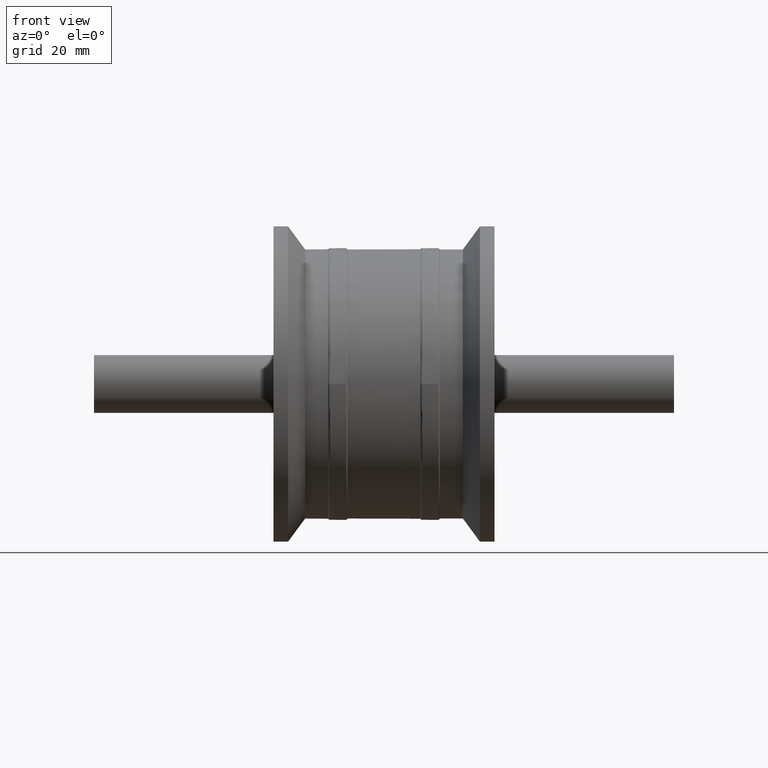
[diagram: clean part render]
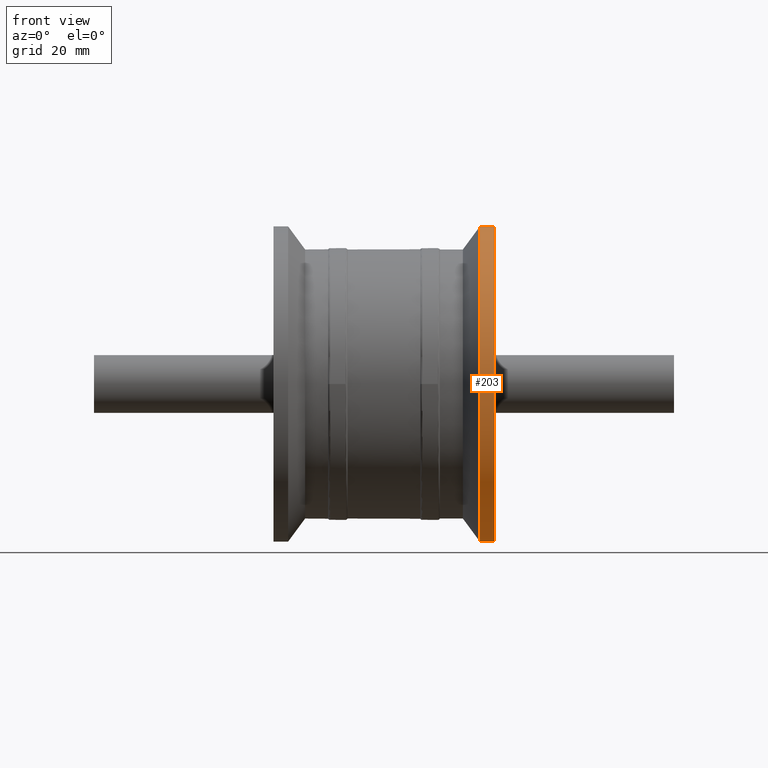
[diagram: same view with one face highlighted and labeled with its STEP entity id]
A machine part, front view. The second image highlights one B-rep face of the part: STEP entity #203.
In plain terms, the highlighted cylindrical surface (bore or boss wall) has radius 32.5 mm, axis along (1, 0, 0).
Its self-contained STEP definition (entity closure, byte-faithful):
#23=CYLINDRICAL_SURFACE('',#234,32.5);
#37=FACE_BOUND('',#81,.T.);
#54=FACE_OUTER_BOUND('',#80,.T.);
#80=EDGE_LOOP('',(#170));
#81=EDGE_LOOP('',(#171));
#110=CIRCLE('',#232,32.5);
#112=CIRCLE('',#235,32.5);
#128=VERTEX_POINT('',#354);
#130=VERTEX_POINT('',#359);
#146=EDGE_CURVE('',#128,#128,#110,.T.);
#148=EDGE_CURVE('',#130,#130,#112,.T.);
#170=ORIENTED_EDGE('',*,*,#146,.F.);
#171=ORIENTED_EDGE('',*,*,#148,.T.);
#203=ADVANCED_FACE('',(#54,#37),#23,.T.);
#232=AXIS2_PLACEMENT_3D('',#355,#286,#287);
#234=AXIS2_PLACEMENT_3D('',#358,#290,#291);
#235=AXIS2_PLACEMENT_3D('',#360,#292,#293);
#286=DIRECTION('center_axis',(1.,3.16459002187477E-16,0.));
#287=DIRECTION('ref_axis',(0.,0.,-1.));
#290=DIRECTION('center_axis',(1.,3.16459002187477E-16,0.));
#291=DIRECTION('ref_axis',(-3.16459002187477E-16,1.,0.));
#292=DIRECTION('center_axis',(1.,3.16459002187477E-16,0.));
#293=DIRECTION('ref_axis',(0.,0.,-1.));
#354=CARTESIAN_POINT('',(22.75,32.5,0.));
#355=CARTESIAN_POINT('Origin',(22.75,7.19944229976511E-15,0.));
#358=CARTESIAN_POINT('Origin',(21.25,6.72475379648389E-15,0.));
#359=CARTESIAN_POINT('',(19.75,32.5,0.));
#360=CARTESIAN_POINT('Origin',(19.75,6.25006529320267E-15,0.));